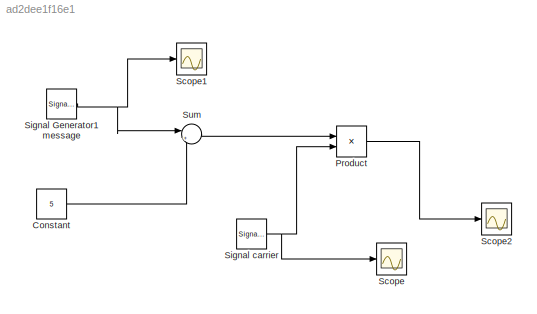
MODEL slx_ad2dee1f16e1
KIND model
BLOCK [Constant] Constant
  Value = 5
BLOCK [Product] Product
  InputSameDT = off
  OutDataTypeStr = Inherit: Inherit via internal rule
  Ports = [2, 1]
  RndMeth = Floor
  SaturateOnIntegerOverflow = off
BLOCK [Scope] Scope
  Floating = off
  NumInputPorts = 1
  Ports = [1]
  ShowLegends = off
BLOCK [Scope] Scope1
  Floating = off
  NumInputPorts = 1
  Ports = [1]
  SaveName = ScopeData1
  ShowLegends = off
BLOCK [Scope] Scope2
  Floating = off
  NumInputPorts = 1
  Ports = [1]
  SaveName = ScopeData2
  ShowLegends = off
BLOCK [SignalGenerator] Signal Generator1 message
  Amplitude = 5
  Frequency = 30
  Ports = [0, 1]
  Units = rad/sec
BLOCK [SignalGenerator] Signal carrier 
  Amplitude = 10
  Frequency = 30
  Ports = [0, 1]
  Units = rad/sec
BLOCK [Sum] Sum
  IconShape = round
  InputSameDT = off
  Inputs = |++
  OutDataTypeStr = Inherit: Inherit via internal rule
  Ports = [2, 1]
  SaturateOnIntegerOverflow = off
LINE Constant:1 -> Sum:2
LINE Product:1 -> Scope2:1
NET Signal Generator1 message:1 -> Scope1:1, Sum:1
NET Signal carrier :1 -> Product:2, Scope:1
LINE Sum:1 -> Product:1
note: NET lines group one-source signal fan-out (src -> all destinations, sorted); 1:1 wires keep LINE
